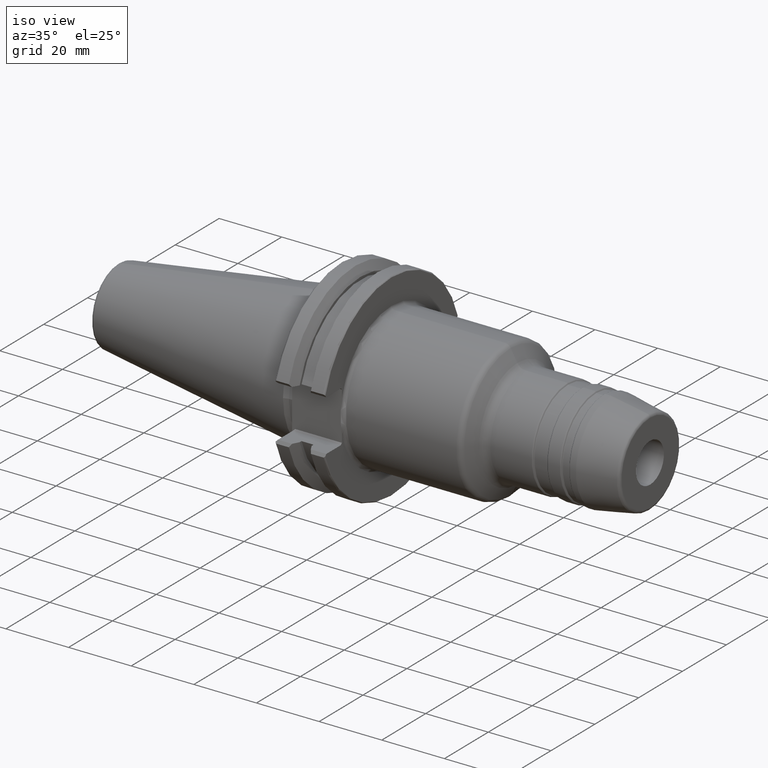
[diagram: clean part render]
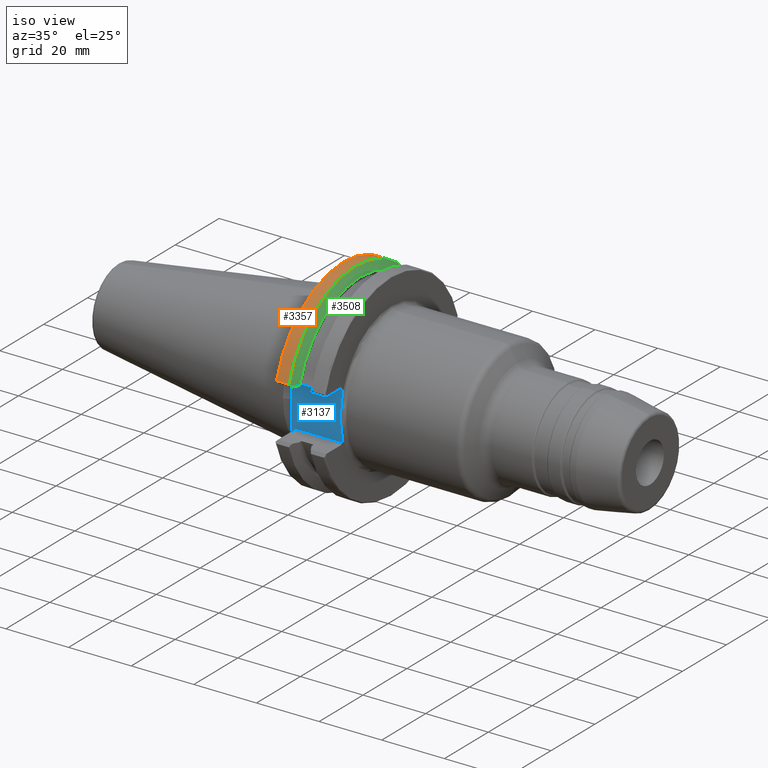
[diagram: same view with three faces highlighted in distinct colors, each labeled with its STEP entity id]
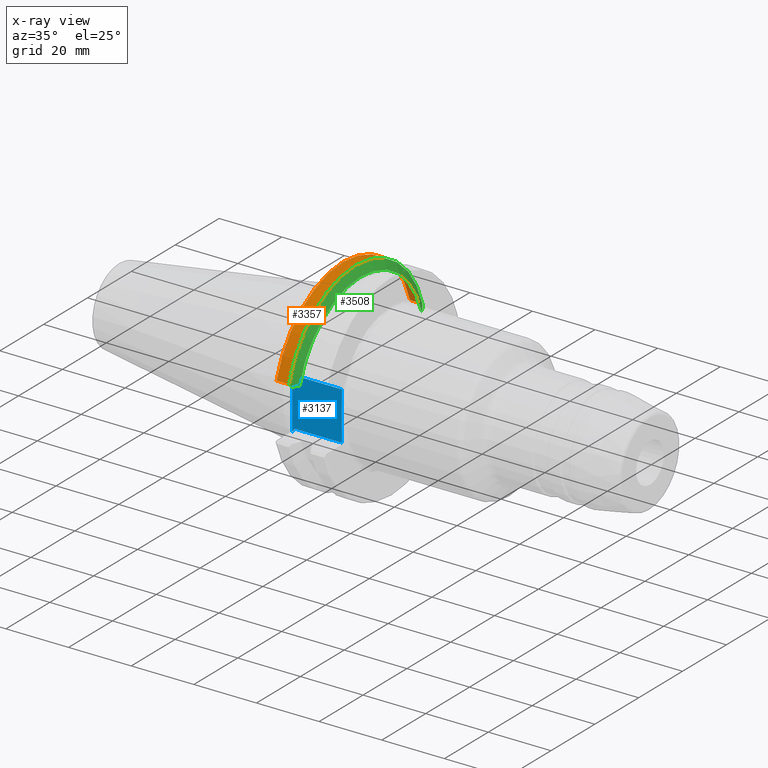
[diagram: x-ray of the same camera — body ghosted, the three highlighted faces saturated]
A machine part, iso view with three faces highlighted in distinct colors.
The next image is the same camera in x-ray (body ghosted, the three faces saturated) — at least one of them is partly hidden behind the body in this view.
Their STEP definitions:

[orange] entity #3357 — the highlighted cylindrical surface (partial cylindrical patch) has radius 31.75 mm, axis along (1, 0, 0).
#1024=DIRECTION('',(-1.E0,0.E0,0.E0));
#1025=VECTOR('',#1024,3.932990865E0);
#1026=CARTESIAN_POINT('',(7.607990865E0,3.042082819764E1,9.090418679549E0));
#1027=LINE('',#1026,#1025);
#1028=DIRECTION('',(1.E0,0.E0,0.E0));
#1029=VECTOR('',#1028,3.932990865E0);
#1030=CARTESIAN_POINT('',(3.675E0,-3.042082819764E1,9.090418679549E0));
#1031=LINE('',#1030,#1029);
#1073=CARTESIAN_POINT('',(3.675E0,0.E0,0.E0));
#1074=DIRECTION('',(1.E0,0.E0,0.E0));
#1075=DIRECTION('',(0.E0,9.581363211856E-1,2.863123993559E-1));
#1076=AXIS2_PLACEMENT_3D('',#1073,#1074,#1075);
#1136=CARTESIAN_POINT('',(7.607990865E0,3.042082819764E1,9.090418679549E0));
#1157=CARTESIAN_POINT('',(7.607990865E0,-3.042082819764E1,9.090418679549E0));
#1163=CARTESIAN_POINT('',(7.607990865E0,0.E0,0.E0));
#1164=DIRECTION('',(-1.E0,0.E0,0.E0));
#1165=DIRECTION('',(0.E0,-9.581363211856E-1,2.863123993559E-1));
#1166=AXIS2_PLACEMENT_3D('',#1163,#1164,#1165);
#1503=VERTEX_POINT('',#1136);
#1512=VERTEX_POINT('',#1157);
#1560=CARTESIAN_POINT('',(3.675E0,3.042082819764E1,9.090418679549E0));
#1561=VERTEX_POINT('',#1560);
#1566=CARTESIAN_POINT('',(3.675E0,-3.042082819764E1,9.090418679549E0));
#1567=VERTEX_POINT('',#1566);
#3342=CARTESIAN_POINT('',(0.E0,0.E0,0.E0));
#3343=DIRECTION('',(1.E0,0.E0,0.E0));
#3344=DIRECTION('',(0.E0,0.E0,1.E0));
#3345=AXIS2_PLACEMENT_3D('',#3342,#3343,#3344);
#3346=CYLINDRICAL_SURFACE('',#3345,3.175E1);
#3348=ORIENTED_EDGE('',*,*,#3347,.F.);
#3350=ORIENTED_EDGE('',*,*,#3349,.F.);
#3352=ORIENTED_EDGE('',*,*,#3351,.F.);
#3354=ORIENTED_EDGE('',*,*,#3353,.F.);
#3355=EDGE_LOOP('',(#3348,#3350,#3352,#3354));
#3356=FACE_OUTER_BOUND('',#3355,.F.);
#3357=ADVANCED_FACE('',(#3356),#3346,.T.);
#1077=CIRCLE('',#1076,3.175E1);
#1167=CIRCLE('',#1166,3.175E1);
#3347=EDGE_CURVE('',#1561,#1567,#1077,.T.);
#3349=EDGE_CURVE('',#1503,#1561,#1027,.T.);
#3351=EDGE_CURVE('',#1512,#1503,#1167,.T.);
#3353=EDGE_CURVE('',#1567,#1512,#1031,.T.);

[blue] entity #3137 — the highlighted planar face has unit normal (0, 1, 0).
#852=DIRECTION('',(0.E0,0.E0,-1.E0));
#853=VECTOR('',#852,1.070338731431E1);
#854=CARTESIAN_POINT('',(1.9075E1,-2.26E1,5.351693657153E0));
#855=LINE('',#854,#853);
#856=DIRECTION('',(-2.734836109649E-14,0.E0,-1.E0));
#857=VECTOR('',#856,2.338306342847E0);
#858=CARTESIAN_POINT('',(1.9075E1,-2.26E1,-5.351693657153E0));
#859=LINE('',#858,#857);
#860=DIRECTION('',(1.E0,0.E0,0.E0));
#861=VECTOR('',#860,1.49E1);
#862=CARTESIAN_POINT('',(4.175E0,-2.26E1,-7.69E0));
#863=LINE('',#862,#861);
#864=DIRECTION('',(0.E0,0.E0,1.E0));
#865=VECTOR('',#864,1.738E1);
#866=CARTESIAN_POINT('',(3.175E0,-2.26E1,-8.69E0));
#867=LINE('',#866,#865);
#868=DIRECTION('',(-1.E0,0.E0,0.E0));
#869=VECTOR('',#868,1.49E1);
#870=CARTESIAN_POINT('',(1.9075E1,-2.26E1,7.69E0));
#871=LINE('',#870,#869);
#872=DIRECTION('',(2.582900770224E-14,0.E0,-1.E0));
#873=VECTOR('',#872,2.338306342847E0);
#874=CARTESIAN_POINT('',(1.9075E1,-2.26E1,7.69E0));
#875=LINE('',#874,#873);
#1096=DIRECTION('',(-7.071067811865E-1,0.E0,7.071067811865E-1));
#1097=VECTOR('',#1096,1.414213562373E0);
#1098=CARTESIAN_POINT('',(4.175E0,-2.26E1,7.69E0));
#1099=LINE('',#1098,#1097);
#1457=DIRECTION('',(7.071067811865E-1,0.E0,7.071067811865E-1));
#1458=VECTOR('',#1457,1.414213562373E0);
#1459=CARTESIAN_POINT('',(3.175E0,-2.26E1,-8.69E0));
#1460=LINE('',#1459,#1458);
#1616=CARTESIAN_POINT('',(3.175E0,-2.26E1,8.69E0));
#1618=VERTEX_POINT('',#1616);
#1625=CARTESIAN_POINT('',(3.175E0,-2.26E1,-8.69E0));
#1627=VERTEX_POINT('',#1625);
#1640=CARTESIAN_POINT('',(4.175E0,-2.26E1,-7.69E0));
#1641=VERTEX_POINT('',#1640);
#1642=CARTESIAN_POINT('',(4.175E0,-2.26E1,7.69E0));
#1643=VERTEX_POINT('',#1642);
#1676=CARTESIAN_POINT('',(1.9075E1,-2.26E1,-7.69E0));
#1677=VERTEX_POINT('',#1676);
#1678=CARTESIAN_POINT('',(1.9075E1,-2.26E1,7.69E0));
#1679=VERTEX_POINT('',#1678);
#1792=CARTESIAN_POINT('',(1.9075E1,-2.26E1,5.351693657153E0));
#1793=CARTESIAN_POINT('',(1.9075E1,-2.26E1,-5.351693657153E0));
#1794=VERTEX_POINT('',#1792);
#1795=VERTEX_POINT('',#1793);
#3118=CARTESIAN_POINT('',(0.E0,-2.26E1,0.E0));
#3119=DIRECTION('',(0.E0,1.E0,0.E0));
#3120=DIRECTION('',(1.E0,0.E0,0.E0));
#3121=AXIS2_PLACEMENT_3D('',#3118,#3119,#3120);
#3122=PLANE('',#3121);
#3123=ORIENTED_EDGE('',*,*,#3112,.T.);
#3124=ORIENTED_EDGE('',*,*,#2139,.T.);
#3126=ORIENTED_EDGE('',*,*,#3125,.F.);
#3128=ORIENTED_EDGE('',*,*,#3127,.F.);
#3129=ORIENTED_EDGE('',*,*,#1987,.T.);
#3131=ORIENTED_EDGE('',*,*,#3130,.F.);
#3133=ORIENTED_EDGE('',*,*,#3132,.F.);
#3134=ORIENTED_EDGE('',*,*,#2108,.T.);
#3135=EDGE_LOOP('',(#3123,#3124,#3126,#3128,#3129,#3131,#3133,#3134));
#3136=FACE_OUTER_BOUND('',#3135,.F.);
#3137=ADVANCED_FACE('',(#3136),#3122,.F.);
#1987=EDGE_CURVE('',#1627,#1618,#867,.T.);
#2108=EDGE_CURVE('',#1679,#1794,#875,.T.);
#2139=EDGE_CURVE('',#1795,#1677,#859,.T.);
#3112=EDGE_CURVE('',#1794,#1795,#855,.T.);
#3125=EDGE_CURVE('',#1641,#1677,#863,.T.);
#3127=EDGE_CURVE('',#1627,#1641,#1460,.T.);
#3130=EDGE_CURVE('',#1643,#1618,#1099,.T.);
#3132=EDGE_CURVE('',#1679,#1643,#871,.T.);

[green] entity #3508 — the highlighted conical surface has half-angle 60 deg.
#1132=CARTESIAN_POINT('',(8.123639020472E0,2.975013277281E1,8.19E0));
#1133=CARTESIAN_POINT('',(8.039100933267E0,2.986102141980E1,8.338869673775E0));
#1134=CARTESIAN_POINT('',(7.868614064527E0,3.008369062664E1,8.637806427737E0));
#1135=CARTESIAN_POINT('',(7.695328138794E0,3.030814968477E1,8.939146083944E0));
#1136=CARTESIAN_POINT('',(7.607990865E0,3.042082819764E1,9.090418679549E0));
#1138=CARTESIAN_POINT('',(8.123639020472E0,2.975013277281E1,8.19E0));
#1139=CARTESIAN_POINT('',(8.247937579506E0,2.952683227014E1,8.19E0));
#1140=CARTESIAN_POINT('',(8.494818240530E0,2.908296065829E1,8.19E0));
#1141=CARTESIAN_POINT('',(8.859971936954E0,2.842534536140E1,8.19E0));
#1142=CARTESIAN_POINT('',(9.099966323800E0,2.799237066391E1,8.19E0));
#1143=CARTESIAN_POINT('',(9.2191E0,2.777724275660E1,8.19E0));
#1145=CARTESIAN_POINT('',(9.2191E0,0.E0,0.E0));
#1146=DIRECTION('',(1.E0,0.E0,0.E0));
#1147=DIRECTION('',(0.E0,9.591762530767E-1,2.828089735736E-1));
#1148=AXIS2_PLACEMENT_3D('',#1145,#1146,#1147);
#1150=CARTESIAN_POINT('',(9.2191E0,-2.777724275660E1,8.19E0));
#1151=CARTESIAN_POINT('',(9.100004436185E0,-2.799230184175E1,8.19E0));
#1152=CARTESIAN_POINT('',(8.860060979749E0,-2.842518482368E1,8.19E0));
#1153=CARTESIAN_POINT('',(8.494908006267E0,-2.908279917371E1,8.19E0));
#1154=CARTESIAN_POINT('',(8.247976093806E0,-2.952676307978E1,8.19E0));
#1155=CARTESIAN_POINT('',(8.123639020472E0,-2.975013277281E1,8.19E0));
#1157=CARTESIAN_POINT('',(7.607990865E0,-3.042082819764E1,9.090418679549E0));
#1158=CARTESIAN_POINT('',(7.695827202243E0,-3.030750581618E1,8.938281680694E0));
#1159=CARTESIAN_POINT('',(7.869605602884E0,-3.008240105924E1,8.636075164136E0));
#1160=CARTESIAN_POINT('',(8.039593216595E0,-2.986037569154E1,8.338002773885E0));
#1161=CARTESIAN_POINT('',(8.123639020472E0,-2.975013277281E1,8.19E0));
#1163=CARTESIAN_POINT('',(7.607990865E0,0.E0,0.E0));
#1164=DIRECTION('',(-1.E0,0.E0,0.E0));
#1165=DIRECTION('',(0.E0,-9.581363211856E-1,2.863123993559E-1));
#1166=AXIS2_PLACEMENT_3D('',#1163,#1164,#1165);
#1470=CARTESIAN_POINT('',(9.2191E0,2.777724275660E1,8.19E0));
#1472=VERTEX_POINT('',#1470);
#1486=CARTESIAN_POINT('',(9.2191E0,-2.777724275660E1,8.19E0));
#1488=VERTEX_POINT('',#1486);
#1502=VERTEX_POINT('',#1132);
#1503=VERTEX_POINT('',#1136);
#1512=VERTEX_POINT('',#1157);
#1513=VERTEX_POINT('',#1161);
#3492=CARTESIAN_POINT('',(8.413545432500E0,0.E0,0.E0));
#3493=DIRECTION('',(-1.E0,0.E0,0.E0));
#3494=DIRECTION('',(0.E0,0.E0,-1.E0));
#3495=AXIS2_PLACEMENT_3D('',#3492,#3493,#3494);
#3496=CONICAL_SURFACE('',#3495,3.035473856082E1,6.E1);
#3498=ORIENTED_EDGE('',*,*,#3497,.F.);
#3500=ORIENTED_EDGE('',*,*,#3499,.T.);
#3502=ORIENTED_EDGE('',*,*,#3501,.T.);
#3503=ORIENTED_EDGE('',*,*,#3465,.T.);
#3504=ORIENTED_EDGE('',*,*,#3431,.F.);
#3505=ORIENTED_EDGE('',*,*,#3351,.T.);
#3506=EDGE_LOOP('',(#3498,#3500,#3502,#3503,#3504,#3505));
#3507=FACE_OUTER_BOUND('',#3506,.F.);
#3508=ADVANCED_FACE('',(#3507),#3496,.T.);
#1137=B_SPLINE_CURVE_WITH_KNOTS('',3,(#1132,#1133,#1134,#1135,#1136),
.UNSPECIFIED.,.F.,.F.,(4,1,4),(0.E0,5.E-1,1.E0),.UNSPECIFIED.);
#1144=B_SPLINE_CURVE_WITH_KNOTS('',3,(#1138,#1139,#1140,#1141,#1142,#1143),
.UNSPECIFIED.,.F.,.F.,(4,1,1,4),(0.E0,3.333333333333E-1,6.666666666667E-1,1.E0),
.UNSPECIFIED.);
#1149=CIRCLE('',#1148,2.895947712164E1);
#1156=B_SPLINE_CURVE_WITH_KNOTS('',3,(#1150,#1151,#1152,#1153,#1154,#1155),
.UNSPECIFIED.,.F.,.F.,(4,1,1,4),(0.E0,3.333333333333E-1,6.666666666667E-1,1.E0),
.UNSPECIFIED.);
#1162=B_SPLINE_CURVE_WITH_KNOTS('',3,(#1157,#1158,#1159,#1160,#1161),
.UNSPECIFIED.,.F.,.F.,(4,1,4),(0.E0,5.E-1,1.E0),.UNSPECIFIED.);
#1167=CIRCLE('',#1166,3.175E1);
#3351=EDGE_CURVE('',#1512,#1503,#1167,.T.);
#3431=EDGE_CURVE('',#1512,#1513,#1162,.T.);
#3465=EDGE_CURVE('',#1488,#1513,#1156,.T.);
#3497=EDGE_CURVE('',#1502,#1503,#1137,.T.);
#3499=EDGE_CURVE('',#1502,#1472,#1144,.T.);
#3501=EDGE_CURVE('',#1472,#1488,#1149,.T.);